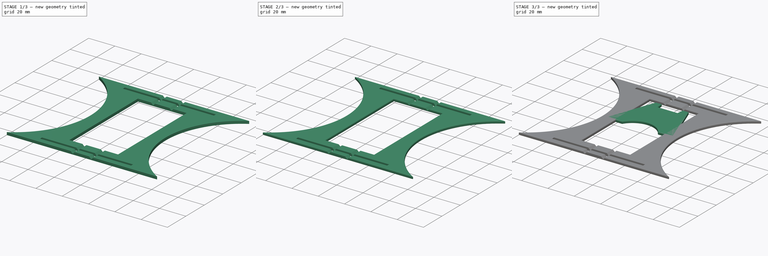
[diagram: build sequence overview — one tinted view per stage of 3, left to right]
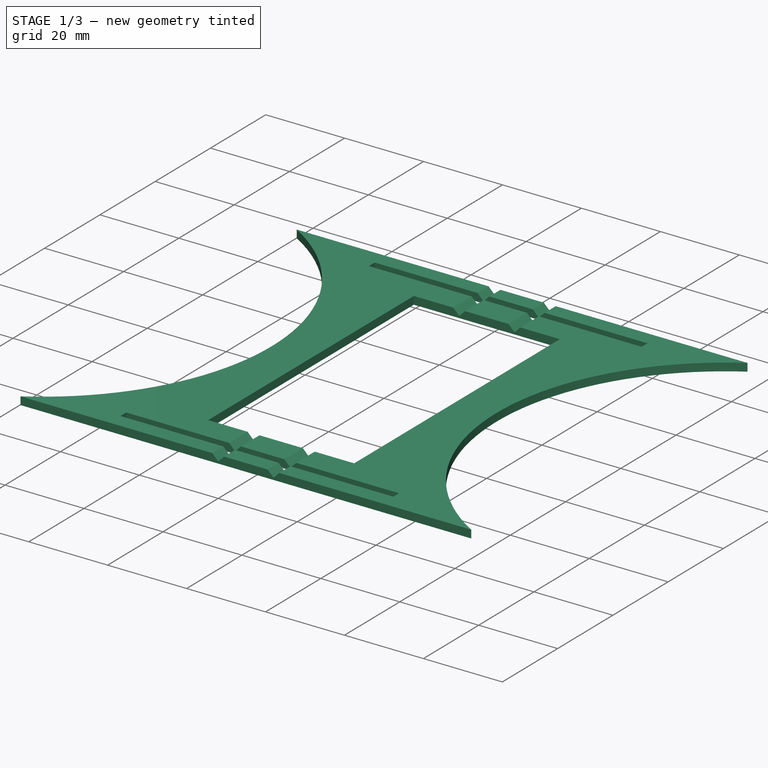
[diagram: stage 1 of 3 — iso view after this stage's code; geometry added in this stage tinted green]
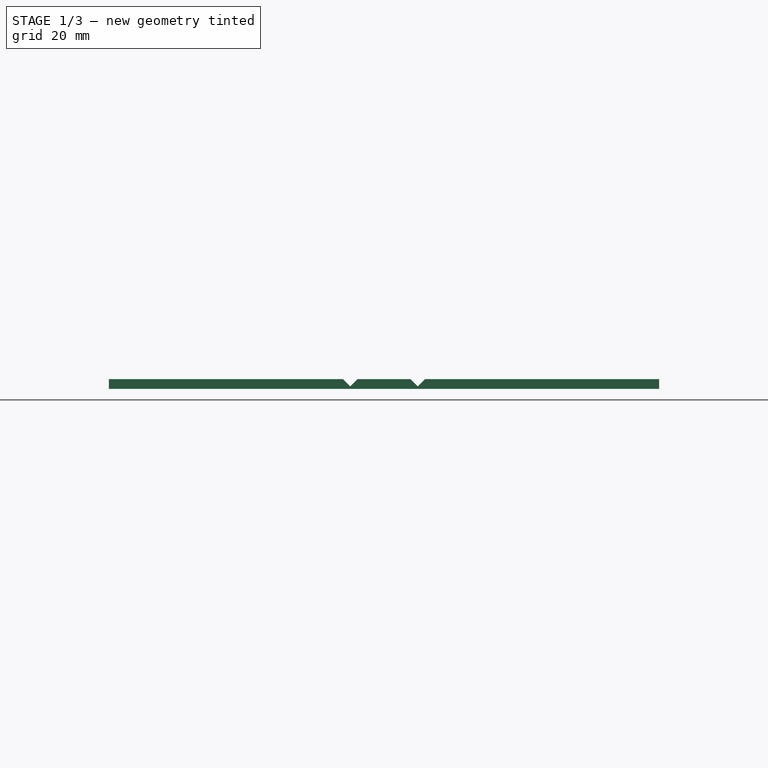
[diagram: stage 1 of 3 — front view after this stage's code; geometry added in this stage tinted green]
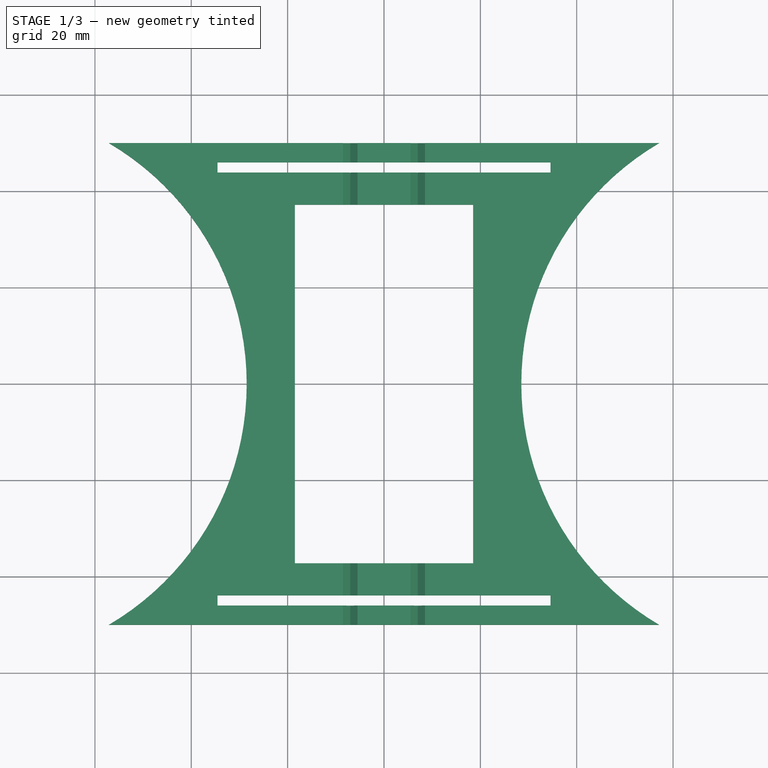
[diagram: stage 1 of 3 — top view after this stage's code; geometry added in this stage tinted green]
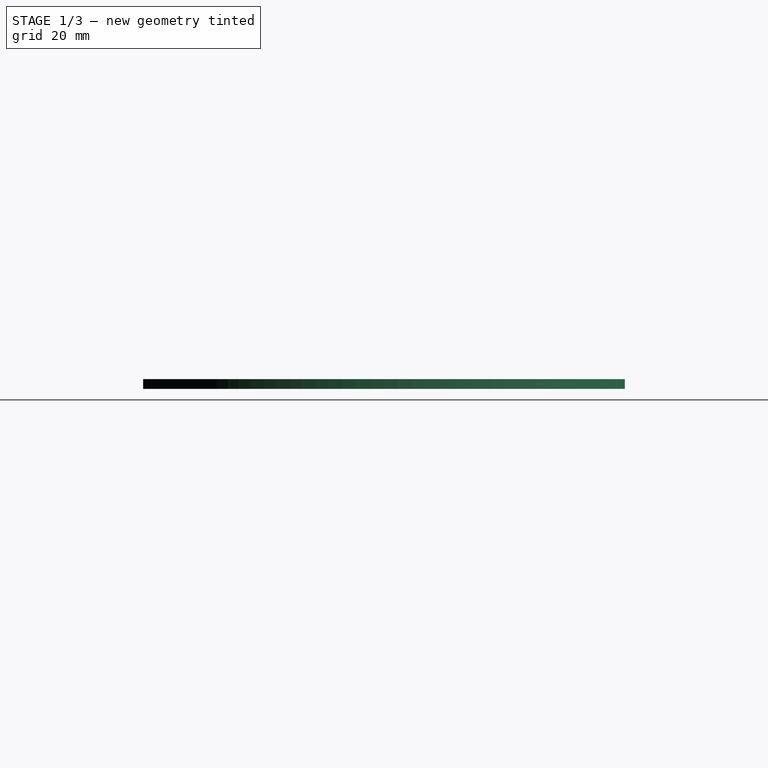
[diagram: stage 1 of 3 — right view after this stage's code; geometry added in this stage tinted green]
FCSTD DOCUMENT  (FreeCAD 0.20R27319 (Git))
Label: Sewing Hoop Stand
License: All rights reserved
LicenseURL: http://en.wikipedia.org/wiki/All_rights_reserved
objects: Sketcher::SketchObject×3, PartDesign::Pad×2, PartDesign::Fillet×2, PartDesign::Body×2, PartDesign::Pocket×1, Spreadsheet::Sheet×1
note: 15 computed .brp shape members not serialized (recipe doc carries the construction recipe); baked Part::Feature solids carry a one-line shape summary decoded from their .brp

FEATURE [Sketcher::SketchObject] Sketch
  FullyConstrained = false
  MapMode = 5
  Support = -> [XY_Plane]
  expr: Constraints[11] = Spreadsheet.HoopDiameter / 2 - 10
  expr: Constraints[36] = Spreadsheet.MaterialThickness + 0.1
  expr: Constraints[39] = Spreadsheet.HoopDiameter / 2
  expr: Constraints[65] = Spreadsheet.Thickness + 4 * (Spreadsheet.MaterialThickness - 0.5)
  expr: Constraints[68] = Spreadsheet.Thickness / 2 + 2 * (Spreadsheet.MaterialThickness - 0.5) + Spreadsheet.Height
  expr: Constraints[80] = Spreadsheet.Thickness
  sketch-geometry (35):
    g0: LineSegment StartX=-57.1061 StartY=50 StartZ=0 EndX=-57.1061 EndY=-50 EndZ=0
    g1: LineSegment StartX=-57.1061 StartY=-50 StartZ=0 EndX=57.1061 EndY=-50 EndZ=0
    g2: LineSegment StartX=57.1061 StartY=-50 StartZ=0 EndX=57.1061 EndY=50 EndZ=0
    g3: LineSegment StartX=57.1061 StartY=50 StartZ=0 EndX=-57.1061 EndY=50 EndZ=0
    g4: GeomPoint X=0 Y=0 Z=0
    g5: ArcOfCircle CenterX=-86.5 CenterY=2e-15 CenterZ=0 NormalX=0 NormalY=0 NormalZ=1 AngleXU=0 Radius=58 StartAngle=5.24385 EndAngle=7.32252
    g6: ArcOfCircle CenterX=86.5 CenterY=-5.4e-15 CenterZ=0 NormalX=0 NormalY=0 NormalZ=1 AngleXU=0 Radius=58 StartAngle=2.10225 EndAngle=4.18093
    g7: LineSegment StartX=-34.5694 StartY=46 StartZ=0 EndX=-34.5694 EndY=43.9 EndZ=0
    g8: LineSegment StartX=-34.5694 StartY=43.9 StartZ=0 EndX=34.5694 EndY=43.9 EndZ=0
    g9: LineSegment StartX=34.5694 StartY=43.9 StartZ=0 EndX=34.5694 EndY=46 EndZ=0
    g10: LineSegment StartX=34.5694 StartY=46 StartZ=0 EndX=-34.5694 EndY=46 EndZ=0
    g11: GeomPoint X=0 Y=44.95 Z=0
    g12: LineSegment StartX=-34.5694 StartY=-43.9 StartZ=0 EndX=-34.5694 EndY=-46 EndZ=0
    g13: LineSegment StartX=-34.5694 StartY=-46 StartZ=0 EndX=34.5694 EndY=-46 EndZ=0
    g14: LineSegment StartX=34.5694 StartY=-46 StartZ=0 EndX=34.5694 EndY=-43.9 EndZ=0
    g15: LineSegment StartX=34.5694 StartY=-43.9 StartZ=0 EndX=-34.5694 EndY=-43.9 EndZ=0
    g16: GeomPoint X=-9.8e-15 Y=-44.95 Z=0
    g17: ArcOfCircle CenterX=-86.5 CenterY=2e-15 CenterZ=0 NormalX=0 NormalY=0 NormalZ=1 AngleXU=0 Radius=68 StartAngle=5.58139 EndAngle=6.98498
    g18: ArcOfCircle CenterX=86.5 CenterY=-5.4e-15 CenterZ=0 NormalX=0 NormalY=0 NormalZ=1 AngleXU=0 Radius=68 StartAngle=2.4398 EndAngle=3.84339
    g19: LineSegment StartX=-18.5 StartY=37.2156 StartZ=0 EndX=-18.5 EndY=-37.2156 EndZ=0
    g20: LineSegment StartX=-18.5 StartY=-37.2156 StartZ=0 EndX=18.5 EndY=-37.2156 EndZ=0
    g21: LineSegment StartX=18.5 StartY=-37.2156 StartZ=0 EndX=18.5 EndY=37.2156 EndZ=0
    g22: LineSegment StartX=18.5 StartY=37.2156 StartZ=0 EndX=-18.5 EndY=37.2156 EndZ=0
    g23: GeomPoint X=0 Y=0 Z=0
    g24: LineSegment StartX=-8.5 StartY=72.3028 StartZ=0 EndX=-8.5 EndY=-72.3028 EndZ=0
    g25: LineSegment StartX=-8.5 StartY=-72.3028 StartZ=0 EndX=8.5 EndY=-72.3028 EndZ=0
    g26: LineSegment StartX=8.5 StartY=-72.3028 StartZ=0 EndX=8.5 EndY=72.3028 EndZ=0
    g27: LineSegment StartX=8.5 StartY=72.3028 StartZ=0 EndX=-8.5 EndY=72.3028 EndZ=0
    g28: GeomPoint X=0 Y=0 Z=0
    g29: GeomPoint X=18.5 Y=0 Z=0
    g30: LineSegment StartX=-5.5 StartY=-72.3028 StartZ=0 EndX=-5.5 EndY=72.3028 EndZ=0
    g31: LineSegment StartX=-5.5 StartY=72.3028 StartZ=0 EndX=5.5 EndY=72.3028 EndZ=0
    g32: LineSegment StartX=5.5 StartY=72.3028 StartZ=0 EndX=5.5 EndY=-72.3028 EndZ=0
    g33: LineSegment StartX=5.5 StartY=-72.3028 StartZ=0 EndX=-5.5 EndY=-72.3028 EndZ=0
    g34: GeomPoint X=0 Y=0 Z=0
  constraints (83):
    c: Coincident(g0,g1)
    c: Coincident(g1,g2)
    c: Coincident(g2,g3)
    c: Coincident(g3,g0)
    c: Horizontal(g1)
    c: Horizontal(g3)
    c: Vertical(g0)
    c: Symmetric(g1,g0,g4)
    c: Coincident(g4,g-1)
    c: Coincident(g5,g0)
    c: Coincident(g5,g0)
    c: Radius(g5) = 58
    c: Distance(g0) = 100
    c: Coincident(g6,g2)
    c: Coincident(g6,g1)
    c: Equal(g5,g6)
    c: Coincident(g7,g8)
    c: Coincident(g8,g9)
    c: Coincident(g9,g10)
    c: Coincident(g10,g7)
    c: Horizontal(g8)
    c: Horizontal(g10)
    c: Vertical(g7)
    c: Vertical(g9)
    c: Symmetric(g8,g7,g11)
    c: PointOnObject(g11,g-2)
    c: Coincident(g12,g13)
    c: Coincident(g13,g14)
    c: Coincident(g14,g15)
    c: Coincident(g15,g12)
    c: Horizontal(g13)
    c: Horizontal(g15)
    c: Vertical(g12)
    c: Symmetric(g13,g12,g16)
    c: Symmetric(g8,g14,g-1)
    c: Symmetric(g9,g13,g-1)
    c: Distance(g14) = 2.1
    c: Coincident(g17,g7)
    c: Coincident(g17,g12)
    c: Radius(g17) = 68
    c: Coincident(g5,g17)
    c: Coincident(g18,g6)
    c: Coincident(g18,g8)
    c: Coincident(g18,g14)
    c: Coincident(g19,g20)
    c: Coincident(g20,g21)
    c: Coincident(g21,g22)
    c: Coincident(g22,g19)
    c: Horizontal(g20)
    c: Horizontal(g22)
    c: Vertical(g19)
    c: Vertical(g21)
    c: Symmetric(g20,g19,g23)
    c: Coincident(g23,g4)
    c: DistanceY(g1,g12) = 4
    c: Coincident(g24,g25)
    c: Coincident(g25,g26)
    c: Coincident(g26,g27)
    c: Coincident(g27,g24)
    c: Horizontal(g25)
    c: Horizontal(g27)
    c: Vertical(g24)
    c: Vertical(g26)
    c: Symmetric(g25,g24,g28)
    c: Coincident(g28,g4)
    c: Distance(g27) = 17
    c: PointOnObject(g29,g18)
    c: PointOnObject(g29,g-1)
    c: DistanceX(g29) = 18.5
    c: PointOnObject(g29,g21)
    c: Coincident(g30,g31)
    c: Coincident(g31,g32)
    c: Coincident(g32,g33)
    c: Coincident(g33,g30)
    c: Horizontal(g31)
    c: Horizontal(g33)
    c: Vertical(g30)
    c: Vertical(g32)
    c: Symmetric(g31,g30,g34)
    c: Coincident(g34,g4)
    c: Distance(g31) = 11
    c: Horizontal(g31,g26)
    c: Distance(g10) = 69.1387
FEATURE [PartDesign::Pad] Pad
  Direction = (0,0,1)
  Length = 2
  Length2 = 10
  Profile = -> Sketch
  ReferenceAxis = -> Sketch [N_Axis]
  Type = 0
  expr: Length = Spreadsheet.MaterialThickness
FEATURE [Sketcher::SketchObject] Sketch001
  ExternalGeometry = -> [Pad]
  FullyConstrained = false
  MapMode = 5
  Placement = pos=(0,-50,0) rot=(1,0,0;1.5708rad)
  Support = -> [Pad]
  expr: Constraints[17] = Spreadsheet.Thickness
  sketch-geometry (8):
    g0: LineSegment StartX=-3.56734 StartY=3.93266 StartZ=0 EndX=-7 EndY=0.5 EndZ=0
    g1: LineSegment StartX=-7 StartY=0.5 StartZ=0 EndX=-10.4327 EndY=3.93266 EndZ=0
    g2: LineSegment StartX=-10.4327 StartY=3.93266 StartZ=0 EndX=-3.56734 EndY=3.93266 EndZ=0
    g3: LineSegment StartX=7 StartY=0.5 StartZ=0 EndX=3.56734 EndY=3.93266 EndZ=0
    g4: LineSegment StartX=3.56734 StartY=3.93266 StartZ=0 EndX=10.4327 EndY=3.93266 EndZ=0
    g5: LineSegment StartX=7 StartY=0.5 StartZ=0 EndX=10.4327 EndY=3.93266 EndZ=0
    g6: GeomPoint X=-5.5 Y=2 Z=0
    g7: GeomPoint X=5.5 Y=2 Z=0
  constraints (18):
    c: Angle(g0,g1) = 1.5708
    c: Coincident(g0,g1)
    c: DistanceY(g0) = 0.5
    c: Coincident(g2,g1)
    c: Coincident(g2,g0)
    c: Horizontal(g2)
    c: Angle(g-1,g0) = 0.785398
    c: Coincident(g4,g3)
    c: Coincident(g5,g3)
    c: Coincident(g5,g4)
    c: Symmetric(g0,g3,g-2)
    c: Symmetric(g1,g4,g-2)
    c: Symmetric(g0,g3,g-2)
    c: PointOnObject(g6,g-3)
    c: PointOnObject(g7,g-3)
    c: PointOnObject(g7,g3)
    c: PointOnObject(g6,g0)
    c: DistanceX(g6,g7) = 11
FEATURE [PartDesign::Pocket] Pocket
  BaseFeature = -> Pad
  Direction = (0,1,-2e-16)
  Length = 5
  Length2 = 5
  Profile = -> Sketch001
  ReferenceAxis = -> Sketch001 [N_Axis]
  Type = 1
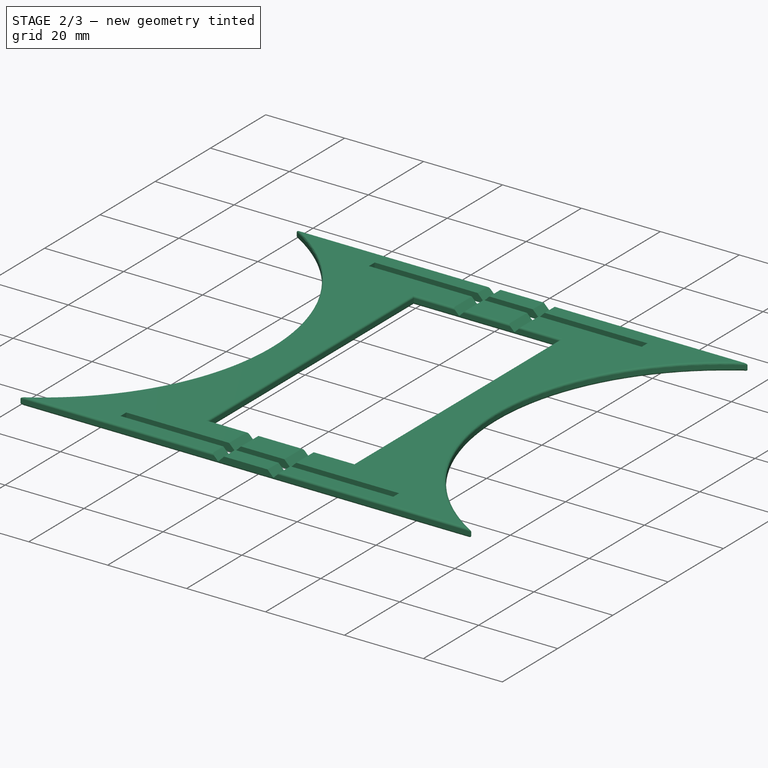
[diagram: stage 2 of 3 — iso view after this stage's code; geometry added in this stage tinted green]
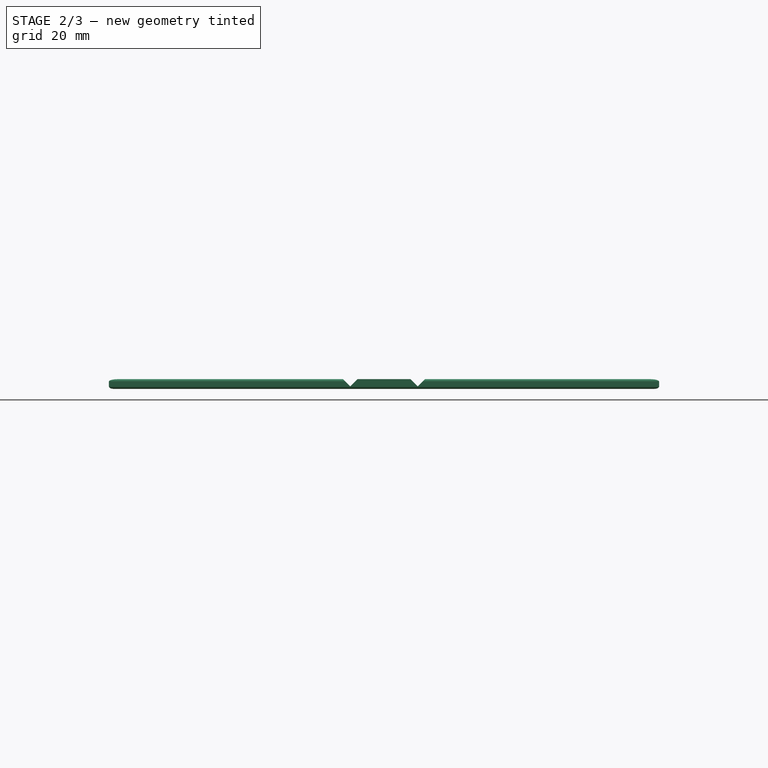
[diagram: stage 2 of 3 — front view after this stage's code; geometry added in this stage tinted green]
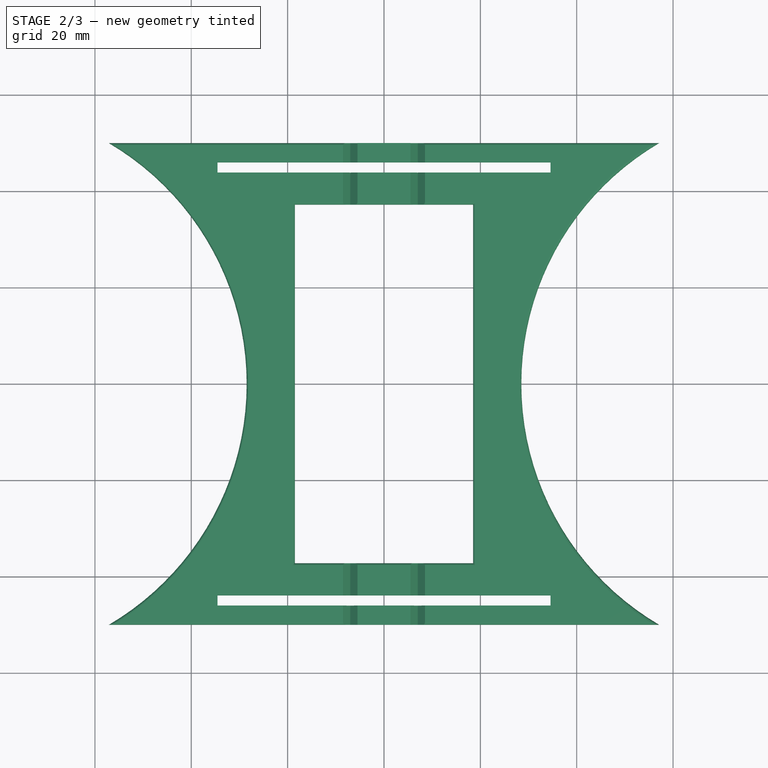
[diagram: stage 2 of 3 — top view after this stage's code; geometry added in this stage tinted green]
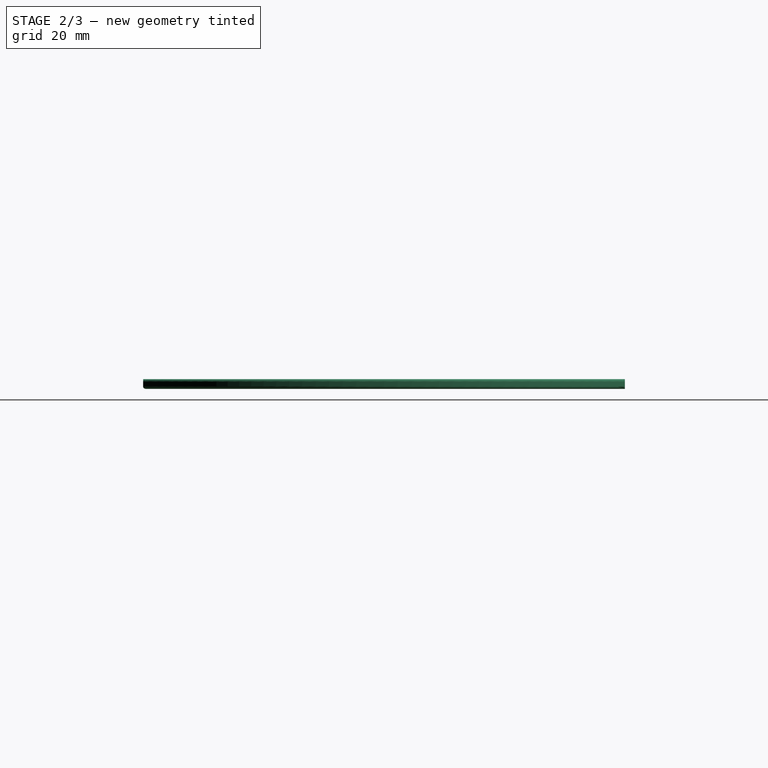
[diagram: stage 2 of 3 — right view after this stage's code; geometry added in this stage tinted green]
FEATURE [PartDesign::Body] Body001  label="Sewing Hoop Feet"
  Group = -> [Sketch002,Pad001,Fillet]
  Origin = -> Origin001
  Tip = -> Fillet
FEATURE [PartDesign::Fillet] Fillet001
  Base = -> Pocket [Edge17,Edge16,Edge15,Edge14,Edge13,Edge11,Edge12,Edge52,Edge27,Edge53,Edge41,Edge3,Edge9,Edge34,Edge33,Edge75,Edge61,Edge60,Edge82,Edge59,Edge35]
  BaseFeature = -> Pocket
  Radius = 0.5
  SupportTransform = false
FEATURE [PartDesign::Body] Body  label="Folded Stand"
  Group = -> [Sketch,Pad,Sketch001,Pocket,Fillet001]
  Origin = -> Origin
  Tip = -> Fillet001
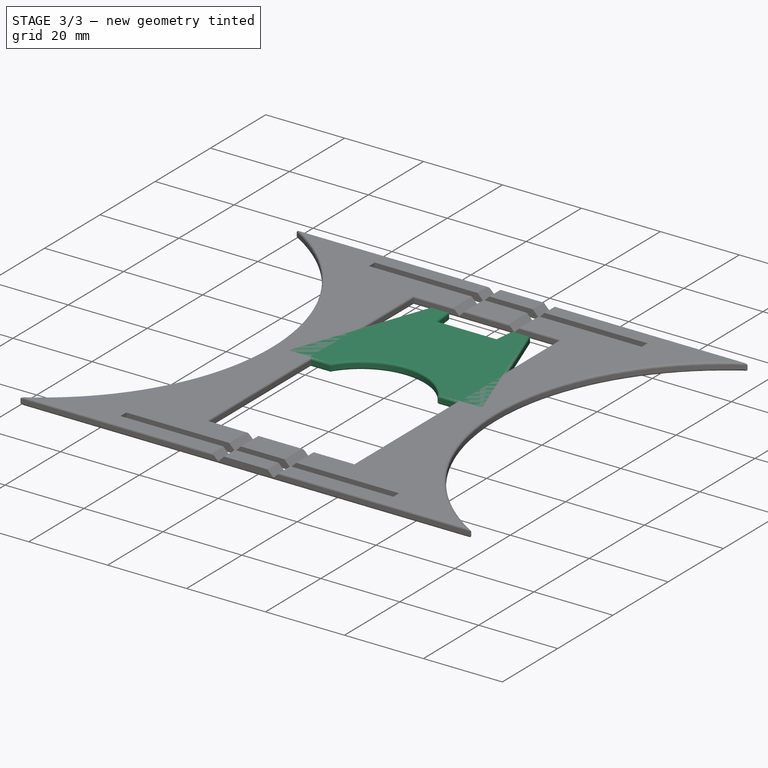
[diagram: stage 3 of 3 — iso view after this stage's code; geometry added in this stage tinted green]
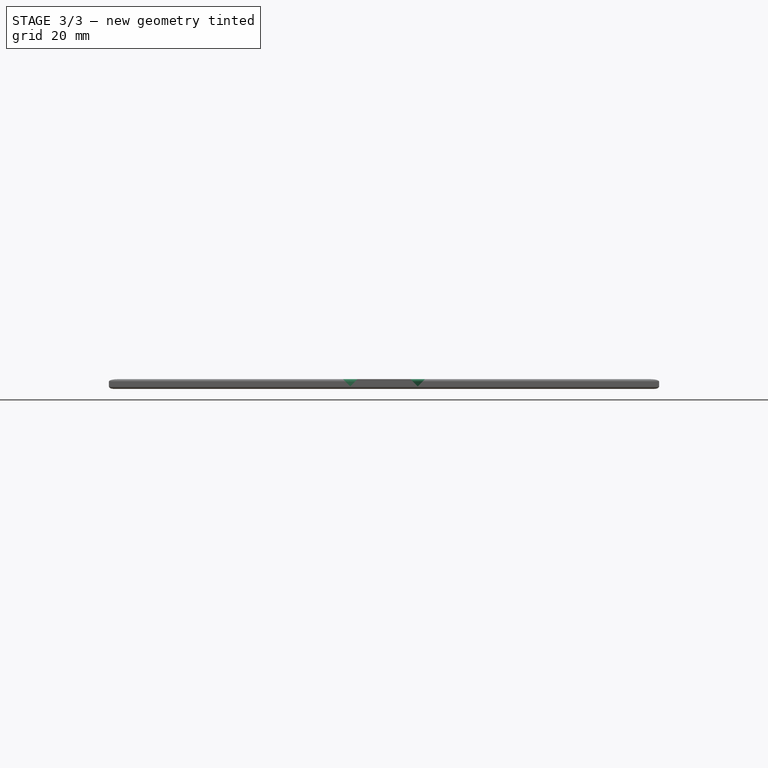
[diagram: stage 3 of 3 — front view after this stage's code; geometry added in this stage tinted green]
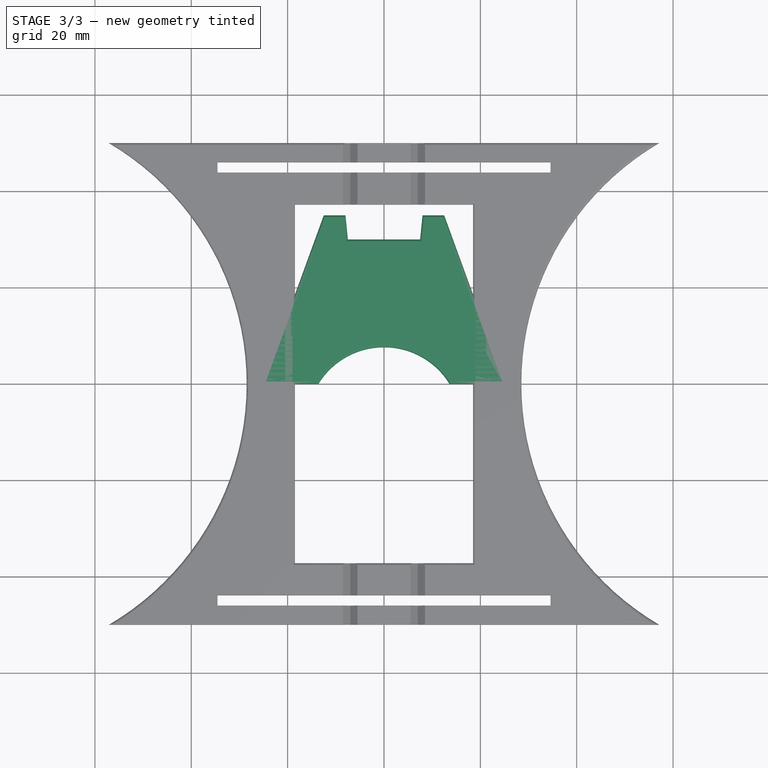
[diagram: stage 3 of 3 — top view after this stage's code; geometry added in this stage tinted green]
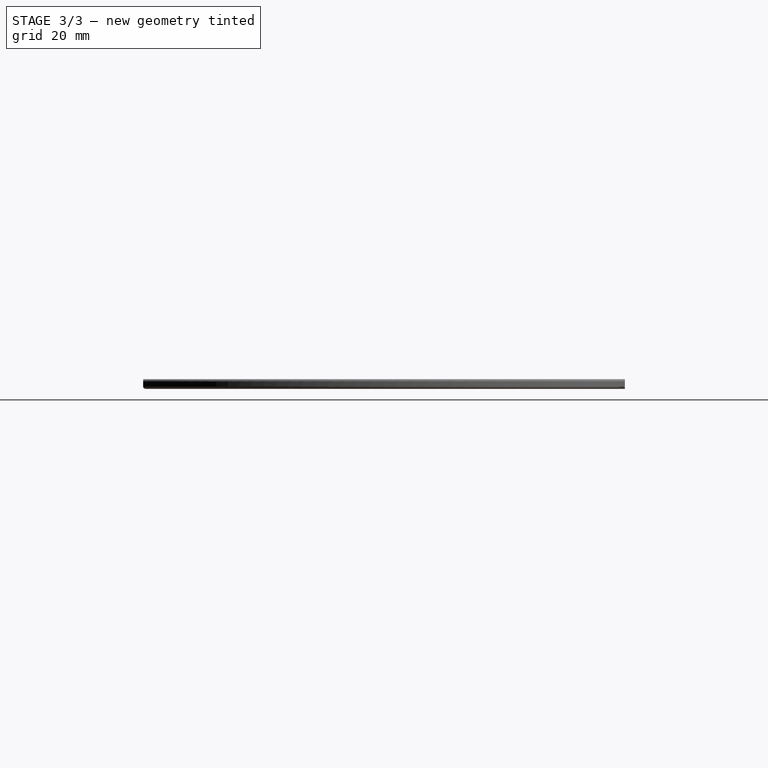
[diagram: stage 3 of 3 — right view after this stage's code; geometry added in this stage tinted green]
FEATURE [Spreadsheet::Sheet] Spreadsheet
  cells = A1=Thickness; B1(Thickness)=11; A2=Height; B2(Height)=10; A3=Material Thickness; B3(MaterialThickness)=2; A4=Hoop Diameter; B4(HoopDiameter)=136
FEATURE [Sketcher::SketchObject] Sketch002
  FullyConstrained = false
  MapMode = 5
  Support = -> [XY_Plane001]
  expr: Constraints[16] = 20 + Spreadsheet.Height
  expr: Constraints[17] = Spreadsheet.Thickness + 2 * Spreadsheet.MaterialThickness
  expr: Constraints[20] = Spreadsheet.Thickness + 2 * Spreadsheet.MaterialThickness + 10
  expr: Constraints[22] = Spreadsheet.Thickness + 2 * Spreadsheet.MaterialThickness + 1
  sketch-geometry (10):
    g0: LineSegment StartX=-25.239 StartY=0 StartZ=0 EndX=-13.6029 EndY=0 EndZ=0
    g1: LineSegment StartX=13.6029 StartY=1.8e-15 StartZ=0 EndX=25.239 EndY=0 EndZ=0
    g2: LineSegment StartX=25.239 StartY=0 StartZ=0 EndX=12.5 EndY=35 EndZ=0
    g3: LineSegment StartX=12.5 StartY=35 StartZ=0 EndX=8 EndY=35 EndZ=0
    g4: LineSegment StartX=-12.5 StartY=35 StartZ=0 EndX=-25.239 EndY=0 EndZ=0
    g5: ArcOfCircle CenterX=-3e-16 CenterY=-8.3697 CenterZ=0 NormalX=0 NormalY=0 NormalZ=1 AngleXU=0 Radius=15.9716 StartAngle=0.551584 EndAngle=2.59001
    g6: LineSegment StartX=7.5 StartY=30 StartZ=0 EndX=8 EndY=35 EndZ=0
    g7: LineSegment StartX=-8 StartY=35 StartZ=0 EndX=-7.5 EndY=30 EndZ=0
    g8: LineSegment StartX=-7.5 StartY=30 StartZ=0 EndX=7.5 EndY=30 EndZ=0
    g9: LineSegment StartX=-8 StartY=35 StartZ=0 EndX=-12.5 EndY=35 EndZ=0
  constraints (24):
    c: Horizontal(g0)
    c: Coincident(g0,g4)
    c: Coincident(g1,g2)
    c: Symmetric(g0,g1,g-2)
    c: Symmetric(g0,g1,g-2)
    c: PointOnObject(g1,g-1)
    c: Coincident(g5,g0)
    c: Coincident(g5,g1)
    c: Coincident(g2,g3)
    c: Coincident(g9,g4)
    c: Symmetric(g2,g9,g-2)
    c: Coincident(g7,g8)
    c: Coincident(g8,g6)
    c: Coincident(g7,g9)
    c: Coincident(g6,g3)
    c: Symmetric(g6,g7,g-2)
    c: DistanceY(g6) = 30
    c: Distance(g8) = 15
    c: DistanceY(g2) = 35
    c: Horizontal(g3)
    c: DistanceX(g4,g2) = 25
    c: Angle(g2,g-1) = 1.22173
    c: DistanceX(g7,g3) = 16
    c: Symmetric(g7,g3,g-2)
FEATURE [PartDesign::Pad] Pad001
  Direction = (0,0,1)
  Length = 2
  Length2 = 10
  Profile = -> Sketch002
  ReferenceAxis = -> Sketch002 [N_Axis]
  Type = 0
  expr: Length = Spreadsheet.MaterialThickness
FEATURE [PartDesign::Fillet] Fillet
  Base = -> Pad001 [Face12,Face11]
  BaseFeature = -> Pad001
  Radius = 0.5
  SupportTransform = false
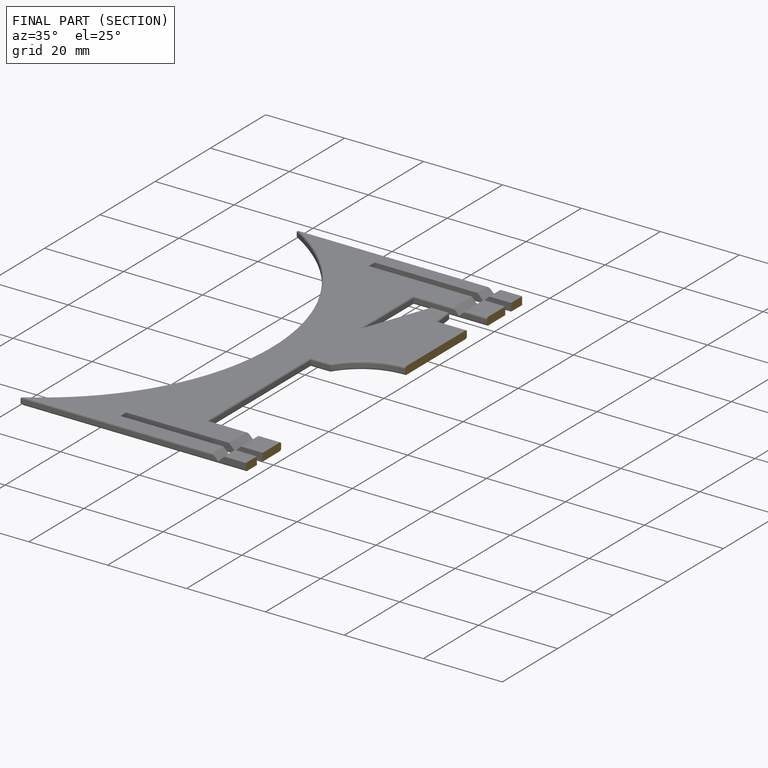
[diagram: finished part — half-section view (interior)]
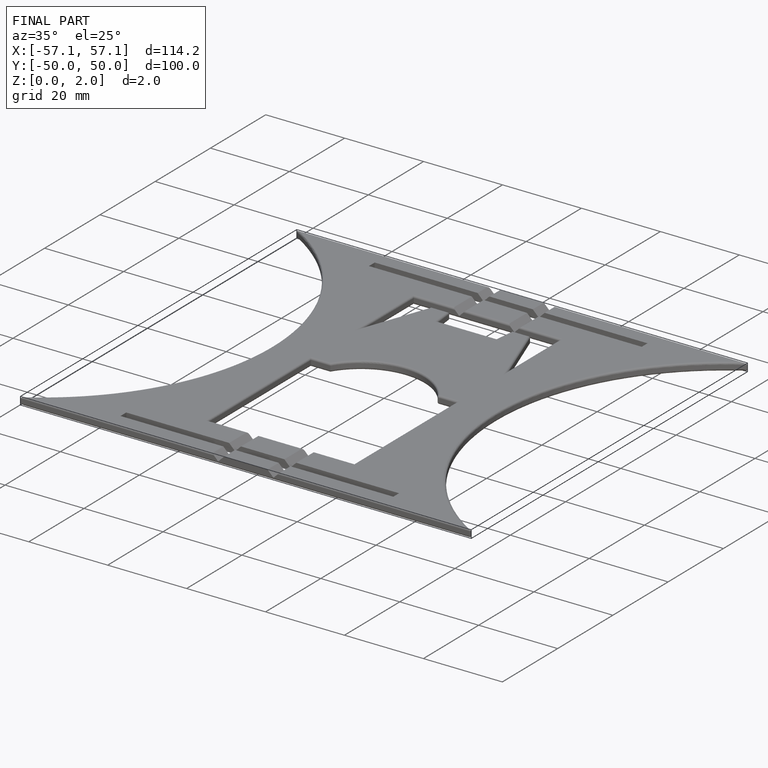
[diagram: finished part — iso view with bounding-box wireframe]
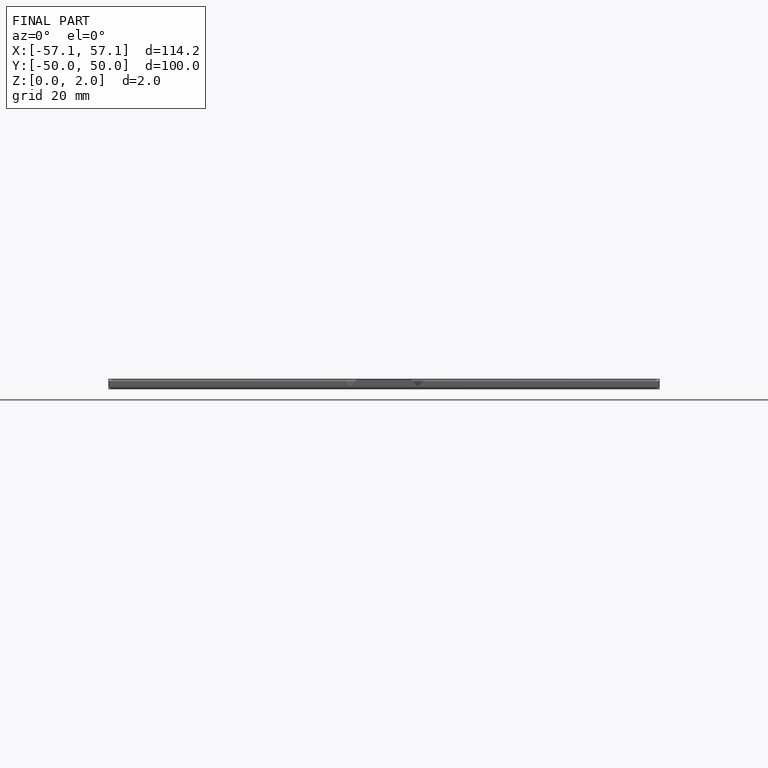
[diagram: finished part — front view with bounding-box wireframe]
